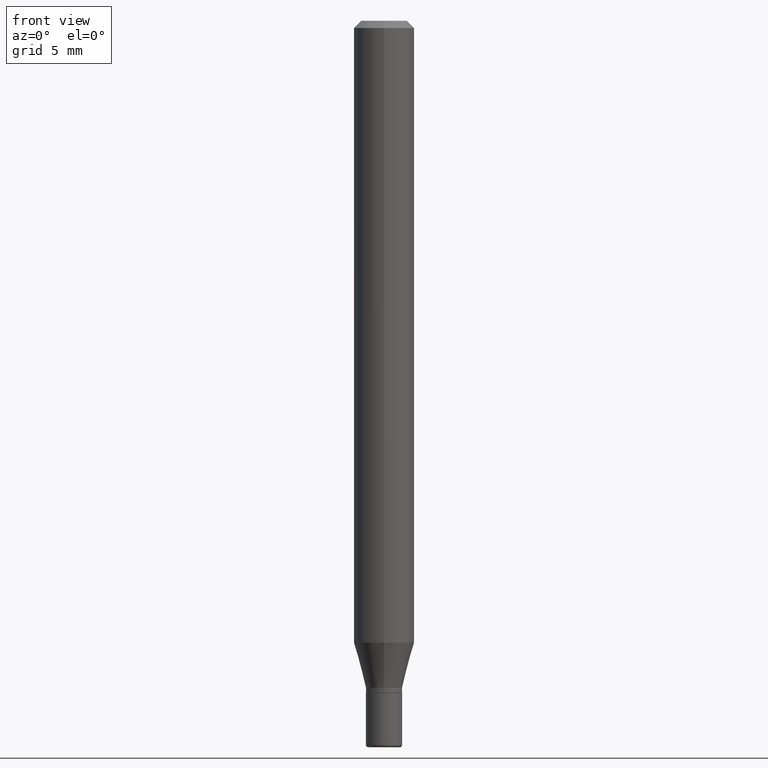
[diagram: clean part render]
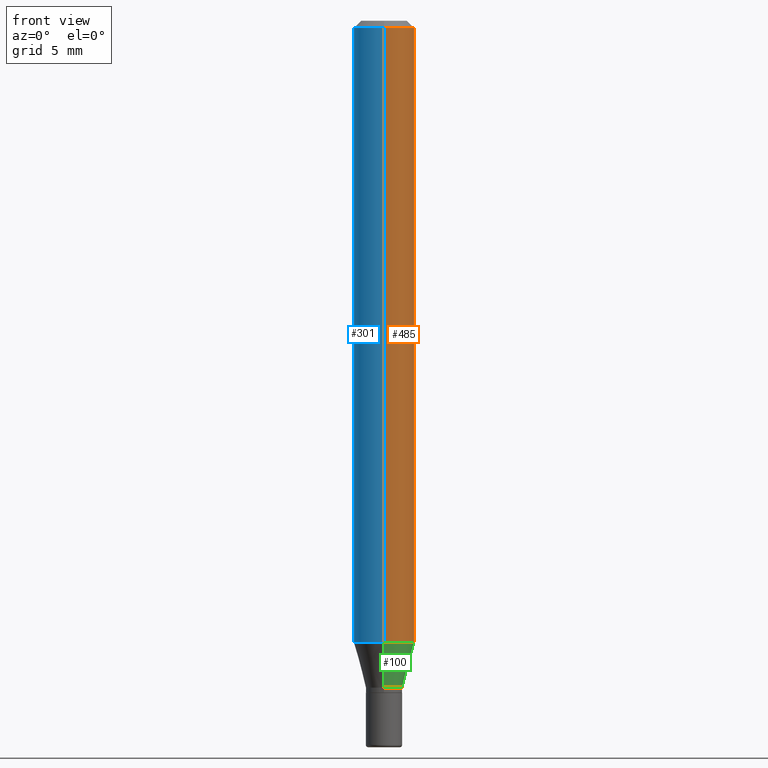
[diagram: same view with three faces highlighted in distinct colors, each labeled with its STEP entity id]
A machine part, front view with three faces highlighted in distinct colors.
Their STEP definitions:

[orange] entity #485 — the highlighted cylindrical surface (edge-blend (fillet) strip) has radius 1.5875 mm, axis along (-0, 0, 1).
#1 = ORIENTED_EDGE ( 'NONE', *, *, #473, .F. ) ;
#3 = DIRECTION ( 'NONE',  ( -6.982962677686265922E-15, -1.000000000000000000, 3.483106191921935554E-15 ) ) ;
#8 = EDGE_CURVE ( 'NONE', #216, #487, #374, .T. ) ;
#42 = DIRECTION ( 'NONE',  ( -2.445491189389452753E-29, 3.491449284820591825E-15, 1.000000000000000000 ) ) ;
#45 = AXIS2_PLACEMENT_3D ( 'NONE', #183, #42, #3 ) ;
#46 = EDGE_LOOP ( 'NONE', ( #330, #418, #1, #80 ) ) ;
#47 = LINE ( 'NONE', #162, #144 ) ;
#49 = CARTESIAN_POINT ( 'NONE',  ( 0.000000000000000000, 0.000000000000000000, 0.000000000000000000 ) ) ;
#80 = ORIENTED_EDGE ( 'NONE', *, *, #8, .F. ) ;
#91 = AXIS2_PLACEMENT_3D ( 'NONE', #310, #234, #322 ) ;
#97 = VERTEX_POINT ( 'NONE', #238 ) ;
#109 = VERTEX_POINT ( 'NONE', #439 ) ;
#125 = CARTESIAN_POINT ( 'NONE',  ( -4.364351673553916201E-16, -0.06250000000000000000, 2.182155803012869891E-16 ) ) ;
#135 = CARTESIAN_POINT ( 'NONE',  ( -4.364351673553605094E-16, -0.06250000000000451028, -1.283698729810778483 ) ) ;
#142 = EDGE_CURVE ( 'NONE', #97, #109, #47, .T. ) ;
#144 = VECTOR ( 'NONE', #328, 39.37007874015748143 ) ;
#162 = CARTESIAN_POINT ( 'NONE',  ( 4.440892098500625669E-16, 0.06250000000000000000, -2.182155803012869891E-16 ) ) ;
#183 = CARTESIAN_POINT ( 'NONE',  ( 3.668236784084106875E-31, -5.237173927230783978E-17, -0.01499999999999970281 ) ) ;
#200 = CYLINDRICAL_SURFACE ( 'NONE', #241, 0.06250000000000000000 ) ;
#206 = FACE_OUTER_BOUND ( 'NONE', #46, .T. ) ;
#209 = DIRECTION ( 'NONE',  ( -6.982962677686265922E-15, -1.000000000000000000, 3.491449284820591825E-15 ) ) ;
#216 = VERTEX_POINT ( 'NONE', #135 ) ;
#234 = DIRECTION ( 'NONE',  ( -2.445491189389452753E-29, 3.491449284820591825E-15, 1.000000000000000000 ) ) ;
#238 = CARTESIAN_POINT ( 'NONE',  ( 4.440892098500937762E-16, 0.06249999999999548278, -1.283698729810779149 ) ) ;
#241 = AXIS2_PLACEMENT_3D ( 'NONE', #49, #288, #209 ) ;
#269 = CIRCLE ( 'NONE', #91, 0.06250000000000000000 ) ;
#288 = DIRECTION ( 'NONE',  ( -2.445491189389452753E-29, 3.491449284820591825E-15, 1.000000000000000000 ) ) ;
#310 = CARTESIAN_POINT ( 'NONE',  ( 3.139273933582690948E-29, -4.481969012122946098E-15, -1.283698729810778927 ) ) ;
#322 = DIRECTION ( 'NONE',  ( -6.982962677686265922E-15, -1.000000000000000000, 4.370956789862821150E-15 ) ) ;
#328 = DIRECTION ( 'NONE',  ( -2.445491189389453033E-29, 3.491449284820591431E-15, 1.000000000000000000 ) ) ;
#330 = ORIENTED_EDGE ( 'NONE', *, *, #358, .T. ) ;
#333 = DIRECTION ( 'NONE',  ( -2.445491189389453033E-29, 3.491449284820591431E-15, 1.000000000000000000 ) ) ;
#358 = EDGE_CURVE ( 'NONE', #216, #97, #269, .T. ) ;
#374 = LINE ( 'NONE', #125, #391 ) ;
#391 = VECTOR ( 'NONE', #333, 39.37007874015748143 ) ;
#418 = ORIENTED_EDGE ( 'NONE', *, *, #142, .T. ) ;
#439 = CARTESIAN_POINT ( 'NONE',  ( 4.440892098500941706E-16, 0.06249999999999995143, -0.01499999999999992138 ) ) ;
#450 = CARTESIAN_POINT ( 'NONE',  ( -4.364351673553912750E-16, -0.06250000000000005551, -0.01499999999999948597 ) ) ;
#473 = EDGE_CURVE ( 'NONE', #487, #109, #499, .T. ) ;
#485 = ADVANCED_FACE ( 'NONE', ( #206 ), #200, .T. ) ;
#487 = VERTEX_POINT ( 'NONE', #450 ) ;
#499 = CIRCLE ( 'NONE', #45, 0.06250000000000000000 ) ;

[blue] entity #301 — the highlighted cylindrical surface (edge-blend (fillet) strip) has radius 1.5875 mm, axis along (-0, 0, 1).
#8 = EDGE_CURVE ( 'NONE', #216, #487, #374, .T. ) ;
#11 = ORIENTED_EDGE ( 'NONE', *, *, #493, .F. ) ;
#31 = CIRCLE ( 'NONE', #498, 0.06250000000000000000 ) ;
#47 = LINE ( 'NONE', #162, #144 ) ;
#62 = CYLINDRICAL_SURFACE ( 'NONE', #157, 0.06250000000000000000 ) ;
#97 = VERTEX_POINT ( 'NONE', #238 ) ;
#98 = DIRECTION ( 'NONE',  ( -2.445491189389452753E-29, 3.491449284820591825E-15, 1.000000000000000000 ) ) ;
#109 = VERTEX_POINT ( 'NONE', #439 ) ;
#111 = ORIENTED_EDGE ( 'NONE', *, *, #142, .F. ) ;
#125 = CARTESIAN_POINT ( 'NONE',  ( -4.364351673553916201E-16, -0.06250000000000000000, 2.182155803012869891E-16 ) ) ;
#135 = CARTESIAN_POINT ( 'NONE',  ( -4.364351673553605094E-16, -0.06250000000000451028, -1.283698729810778483 ) ) ;
#139 = CARTESIAN_POINT ( 'NONE',  ( 0.000000000000000000, 0.000000000000000000, 0.000000000000000000 ) ) ;
#142 = EDGE_CURVE ( 'NONE', #97, #109, #47, .T. ) ;
#144 = VECTOR ( 'NONE', #328, 39.37007874015748143 ) ;
#157 = AXIS2_PLACEMENT_3D ( 'NONE', #139, #218, #341 ) ;
#162 = CARTESIAN_POINT ( 'NONE',  ( 4.440892098500625669E-16, 0.06250000000000000000, -2.182155803012869891E-16 ) ) ;
#202 = DIRECTION ( 'NONE',  ( -6.982962677686265922E-15, -1.000000000000000000, 3.483106191921935554E-15 ) ) ;
#216 = VERTEX_POINT ( 'NONE', #135 ) ;
#218 = DIRECTION ( 'NONE',  ( -2.445491189389452753E-29, 3.491449284820591825E-15, 1.000000000000000000 ) ) ;
#233 = EDGE_CURVE ( 'NONE', #97, #216, #31, .T. ) ;
#238 = CARTESIAN_POINT ( 'NONE',  ( 4.440892098500937762E-16, 0.06249999999999548278, -1.283698729810779149 ) ) ;
#301 = ADVANCED_FACE ( 'NONE', ( #504 ), #62, .T. ) ;
#309 = CARTESIAN_POINT ( 'NONE',  ( 3.139273933582690948E-29, -4.481969012122946098E-15, -1.283698729810778927 ) ) ;
#328 = DIRECTION ( 'NONE',  ( -2.445491189389453033E-29, 3.491449284820591431E-15, 1.000000000000000000 ) ) ;
#333 = DIRECTION ( 'NONE',  ( -2.445491189389453033E-29, 3.491449284820591431E-15, 1.000000000000000000 ) ) ;
#341 = DIRECTION ( 'NONE',  ( -6.982962677686265922E-15, -1.000000000000000000, 3.491449284820591825E-15 ) ) ;
#374 = LINE ( 'NONE', #125, #391 ) ;
#391 = VECTOR ( 'NONE', #333, 39.37007874015748143 ) ;
#406 = ORIENTED_EDGE ( 'NONE', *, *, #8, .T. ) ;
#411 = DIRECTION ( 'NONE',  ( -2.445491189389452753E-29, 3.491449284820591825E-15, 1.000000000000000000 ) ) ;
#421 = AXIS2_PLACEMENT_3D ( 'NONE', #491, #411, #202 ) ;
#425 = DIRECTION ( 'NONE',  ( -6.982962677686265922E-15, -1.000000000000000000, 4.370956789862821150E-15 ) ) ;
#438 = CIRCLE ( 'NONE', #421, 0.06250000000000000000 ) ;
#439 = CARTESIAN_POINT ( 'NONE',  ( 4.440892098500941706E-16, 0.06249999999999995143, -0.01499999999999992138 ) ) ;
#450 = CARTESIAN_POINT ( 'NONE',  ( -4.364351673553912750E-16, -0.06250000000000005551, -0.01499999999999948597 ) ) ;
#480 = ORIENTED_EDGE ( 'NONE', *, *, #233, .T. ) ;
#487 = VERTEX_POINT ( 'NONE', #450 ) ;
#490 = EDGE_LOOP ( 'NONE', ( #111, #480, #406, #11 ) ) ;
#491 = CARTESIAN_POINT ( 'NONE',  ( 3.668236784084106875E-31, -5.237173927230783978E-17, -0.01499999999999970281 ) ) ;
#493 = EDGE_CURVE ( 'NONE', #109, #487, #438, .T. ) ;
#498 = AXIS2_PLACEMENT_3D ( 'NONE', #309, #98, #425 ) ;
#504 = FACE_OUTER_BOUND ( 'NONE', #490, .T. ) ;

[green] entity #100 — the highlighted conical surface has half-angle 15 deg.
#6 = ORIENTED_EDGE ( 'NONE', *, *, #368, .F. ) ;
#12 = DIRECTION ( 'NONE',  ( -6.982962677686265922E-15, -1.000000000000000000, 0.000000000000000000 ) ) ;
#36 = AXIS2_PLACEMENT_3D ( 'NONE', #476, #300, #429 ) ;
#68 = CIRCLE ( 'NONE', #36, 0.03750000000000009576 ) ;
#86 = VERTEX_POINT ( 'NONE', #270 ) ;
#91 = AXIS2_PLACEMENT_3D ( 'NONE', #310, #234, #322 ) ;
#97 = VERTEX_POINT ( 'NONE', #238 ) ;
#100 = ADVANCED_FACE ( 'NONE', ( #235 ), #385, .T. ) ;
#135 = CARTESIAN_POINT ( 'NONE',  ( -4.364351673553605094E-16, -0.06250000000000451028, -1.283698729810778483 ) ) ;
#138 = VECTOR ( 'NONE', #357, 39.37007874015748854 ) ;
#141 = LINE ( 'NONE', #351, #392 ) ;
#172 = EDGE_LOOP ( 'NONE', ( #335, #321, #191, #6 ) ) ;
#177 = EDGE_CURVE ( 'NONE', #86, #448, #68, .T. ) ;
#191 = ORIENTED_EDGE ( 'NONE', *, *, #358, .F. ) ;
#193 = DIRECTION ( 'NONE',  ( -2.445491189389452753E-29, 3.491449284820591825E-15, 1.000000000000000000 ) ) ;
#216 = VERTEX_POINT ( 'NONE', #135 ) ;
#228 = CARTESIAN_POINT ( 'NONE',  ( -2.618611004132019681E-16, -0.03750000000000490441, -1.377000000000000446 ) ) ;
#234 = DIRECTION ( 'NONE',  ( -2.445491189389452753E-29, 3.491449284820591825E-15, 1.000000000000000000 ) ) ;
#235 = FACE_OUTER_BOUND ( 'NONE', #172, .T. ) ;
#238 = CARTESIAN_POINT ( 'NONE',  ( 4.440892098500937762E-16, 0.06249999999999548278, -1.283698729810779149 ) ) ;
#249 = AXIS2_PLACEMENT_3D ( 'NONE', #355, #193, #12 ) ;
#269 = CIRCLE ( 'NONE', #91, 0.06250000000000000000 ) ;
#270 = CARTESIAN_POINT ( 'NONE',  ( -2.618611004132019681E-16, -0.03750000000000490441, -1.377000000000000446 ) ) ;
#300 = DIRECTION ( 'NONE',  ( -2.445491189389452753E-29, 3.491449284820591825E-15, 1.000000000000000000 ) ) ;
#310 = CARTESIAN_POINT ( 'NONE',  ( 3.139273933582690948E-29, -4.481969012122946098E-15, -1.283698729810778927 ) ) ;
#321 = ORIENTED_EDGE ( 'NONE', *, *, #342, .T. ) ;
#322 = DIRECTION ( 'NONE',  ( -6.982962677686265922E-15, -1.000000000000000000, 4.370956789862821150E-15 ) ) ;
#335 = ORIENTED_EDGE ( 'NONE', *, *, #177, .T. ) ;
#342 = EDGE_CURVE ( 'NONE', #448, #97, #141, .T. ) ;
#351 = CARTESIAN_POINT ( 'NONE',  ( 2.664535259100718753E-16, 0.03749999999999528710, -1.377000000000000446 ) ) ;
#355 = CARTESIAN_POINT ( 'NONE',  ( 3.367441367789276966E-29, -4.807725665197956479E-15, -1.377000000000000446 ) ) ;
#357 = DIRECTION ( 'NONE',  ( -1.807323732225325406E-15, -0.2588190451025175198, 0.9659258262890690894 ) ) ;
#358 = EDGE_CURVE ( 'NONE', #216, #97, #269, .T. ) ;
#368 = EDGE_CURVE ( 'NONE', #86, #216, #434, .T. ) ;
#385 = CONICAL_SURFACE ( 'NONE', #249, 0.03750000000000009576, 0.2617993877991495744 ) ;
#392 = VECTOR ( 'NONE', #514, 39.37007874015748854 ) ;
#395 = CARTESIAN_POINT ( 'NONE',  ( 3.552713678800830476E-16, 0.03749999999999528710, -1.377000000000000446 ) ) ;
#429 = DIRECTION ( 'NONE',  ( -6.982962677686265922E-15, -1.000000000000000000, 0.000000000000000000 ) ) ;
#434 = LINE ( 'NONE', #228, #138 ) ;
#448 = VERTEX_POINT ( 'NONE', #395 ) ;
#476 = CARTESIAN_POINT ( 'NONE',  ( 3.367441367789276966E-29, -4.807725665197956479E-15, -1.377000000000000446 ) ) ;
#514 = DIRECTION ( 'NONE',  ( 1.839019923739595582E-15, 0.2588190451025242922, 0.9659258262890673130 ) ) ;